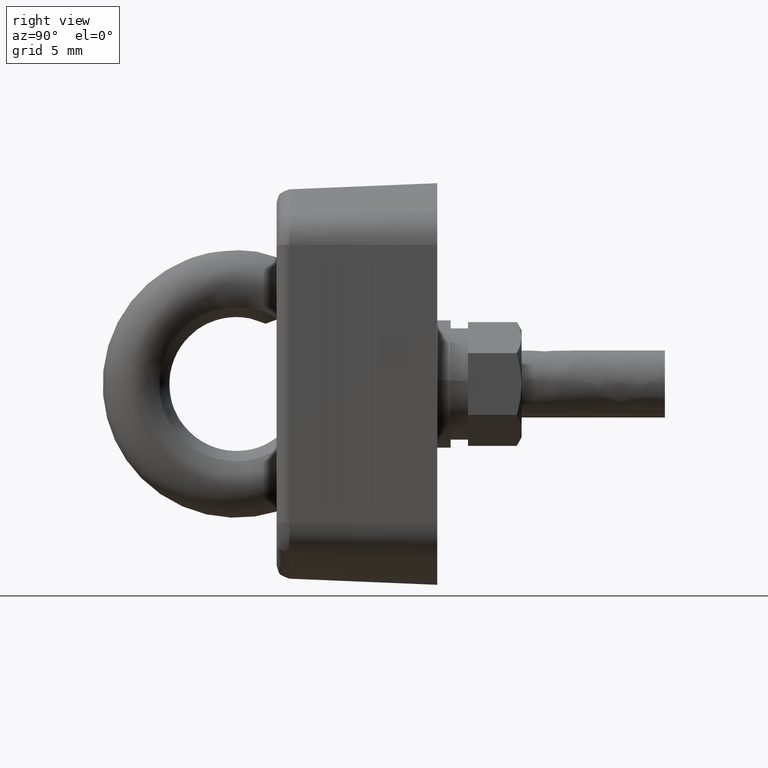
[diagram: clean part render]
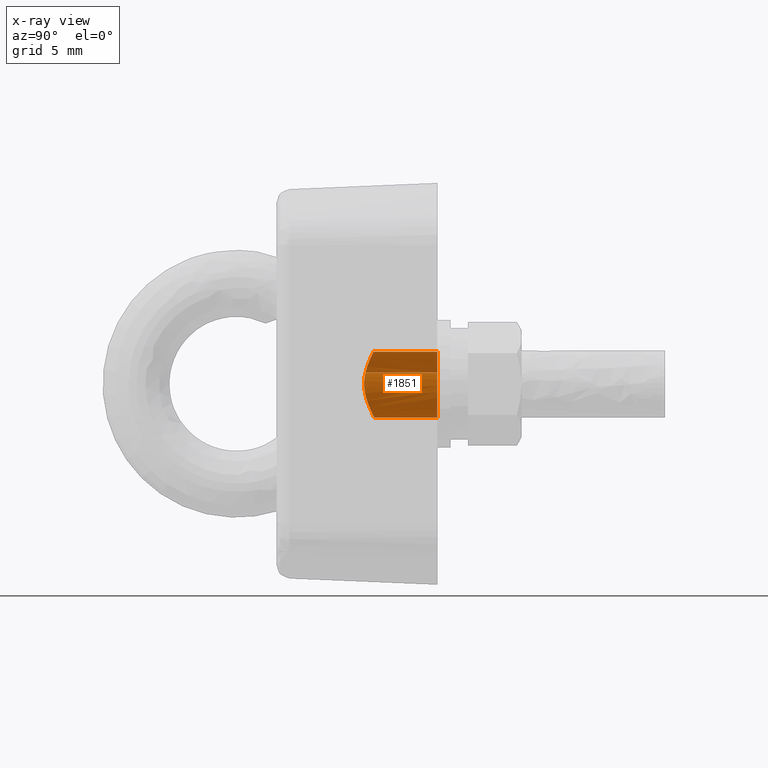
[diagram: x-ray — body ghosted, one internal face saturated and labeled with its STEP entity id]
A machine part, right view, then the same camera in x-ray: the body is ghosted and one INTERNAL B-rep face — a face not visible from any outside direction — is saturated and labeled: STEP entity #1851.
In plain terms, the highlighted face is a freeform B-spline surface patch.
Its self-contained STEP definition (entity closure, byte-faithful):
#1662=CARTESIAN_POINT('',(-2.400474345625166,-0.698371617403961,-15.136675569857164));
#1663=CARTESIAN_POINT('',(-2.380487249975805,-0.767072161862221,-15.136675569857156));
#1664=CARTESIAN_POINT('',(-2.356603727730445,-0.834517148084427,-15.136675569857159));
#1665=CARTESIAN_POINT('',(-1.522086579646018,-3.191120875814873,-15.136675569857164));
#1666=CARTESIAN_POINT('',(0.834517148084427,-2.356603727730445,-15.136675569857159));
#1667=CARTESIAN_POINT('',(3.191120875814873,-1.522086579646018,-15.136675569857164));
#1668=CARTESIAN_POINT('',(2.356603727730445,0.834517148084427,-15.136675569857159));
#1669=CARTESIAN_POINT('',(1.522086579646018,3.191120875814873,-15.136675569857164));
#1670=CARTESIAN_POINT('',(-0.834517148084427,2.356603727730445,-15.136675569857159));
#1671=CARTESIAN_POINT('',(-2.400474345625166,-0.698371617403961,-9.392884746610127));
#1672=CARTESIAN_POINT('',(-2.380487249975805,-0.767072161862221,-9.392884746610127));
#1673=CARTESIAN_POINT('',(-2.356603727730445,-0.834517148084427,-9.392884746610127));
#1674=CARTESIAN_POINT('',(-1.522086579646018,-3.191120875814873,-9.392884746610127));
#1675=CARTESIAN_POINT('',(0.834517148084427,-2.356603727730445,-9.392884746610127));
#1676=CARTESIAN_POINT('',(3.191120875814873,-1.522086579646018,-9.392884746610127));
#1677=CARTESIAN_POINT('',(2.356603727730445,0.834517148084427,-9.392884746610127));
#1678=CARTESIAN_POINT('',(1.522086579646018,3.191120875814873,-9.392884746610127));
#1679=CARTESIAN_POINT('',(-0.834517148084427,2.356603727730445,-9.392884746610127));
#1687=(BOUNDED_SURFACE()B_SPLINE_SURFACE(2,1,((#1662,#1671),(#1663,#1672),(#1664,#1673),(#1665,#1674),(#1666,#1675),(#1667,#1676),(#1668,#1677),(#1669,#1678),(#1670,#1679)),.UNSPECIFIED.,.F.,.F.,.U.)B_SPLINE_SURFACE_WITH_KNOTS((3,2,2,2,3),(2,2),(0.0,0.165685424949238,4.307821048680188,8.449956672411137,12.592092296142090),(0.0,5.743790823247034),.UNSPECIFIED.)GEOMETRIC_REPRESENTATION_ITEM()RATIONAL_B_SPLINE_SURFACE(((0.977505800795127,0.977505800795127),(0.988284271247462,0.988284271247462),(1.0,1.0),(0.707106781186548,0.707106781186548),(1.0,1.0),(0.707106781186548,0.707106781186548),(1.0,1.0),(0.707106781186548,0.707106781186548),(1.0,1.0)))REPRESENTATION_ITEM('')SURFACE());
#1688=CARTESIAN_POINT('',(-2.400485854074208,-0.698374963208913,-10.234896497972350));
#1689=VERTEX_POINT('',#1688);
#1690=CARTESIAN_POINT('',(-1.720062275421230,-1.814217674007285,-9.928201525168769));
#1691=VERTEX_POINT('',#1690);
#1692=CARTESIAN_POINT('',(-2.400485854074208,-0.698374963208913,-10.234896497972350));
#1693=CARTESIAN_POINT('',(-2.367907092692476,-0.810436813161984,-10.219110944419990));
#1694=CARTESIAN_POINT('',(-2.327827641463128,-0.918944160178772,-10.199824021060470));
#1695=CARTESIAN_POINT('',(-2.246997490033376,-1.098950831240567,-10.161490248014610));
#1696=CARTESIAN_POINT('',(-2.209727648091478,-1.172110236633715,-10.143962467868111));
#1697=CARTESIAN_POINT('',(-2.127845320286762,-1.314922363530359,-10.105989605065600));
#1698=CARTESIAN_POINT('',(-2.083843264726757,-1.383519662146822,-10.085828354127290));
#1699=CARTESIAN_POINT('',(-1.989967933757002,-1.515442026412261,-10.043587306438409));
#1700=CARTESIAN_POINT('',(-1.940094058799905,-1.578766054454357,-10.021505864531781));
#1701=CARTESIAN_POINT('',(-1.860902417329325,-1.669926386075394,-9.987266224498193));
#1702=CARTESIAN_POINT('',(-1.833773420225461,-1.699674306492915,-9.975666920876471));
#1703=CARTESIAN_POINT('',(-1.778035478738422,-1.757899561773036,-9.952154174289246));
#1704=CARTESIAN_POINT('',(-1.749344061989657,-1.786455140004649,-9.940206839056346));
#1705=CARTESIAN_POINT('',(-1.720062275421230,-1.814217674007285,-9.928201525168769));
#1706=B_SPLINE_CURVE_WITH_KNOTS('',3,(#1692,#1693,#1694,#1695,#1696,#1697,#1698,#1699,#1700,#1701,#1702,#1703,#1704,#1705),.UNSPECIFIED.,.F.,.U.,(4,2,2,2,2,2,4),(0.915544817561064,0.937499999999999,0.953125000000000,0.968750000000000,0.984375000000000,0.992187500000000,1.0),.UNSPECIFIED.);
#1707=EDGE_CURVE('',#1689,#1691,#1706,.T.);
#1708=ORIENTED_EDGE('',*,*,#1707,.T.);
#1709=CARTESIAN_POINT('',(1.725003035188111,1.809520524501401,-9.930228915298610));
#1710=VERTEX_POINT('',#1709);
#1711=CARTESIAN_POINT('',(-1.720062275421230,-1.814217674007285,-9.928201525168769));
#1712=CARTESIAN_POINT('',(-1.602933734841284,-1.925267404650524,-9.880180269620254));
#1713=CARTESIAN_POINT('',(-1.477228055666882,-2.023177779489839,-9.831475387068535));
#1714=CARTESIAN_POINT('',(-1.275367553175692,-2.151697090269526,-9.761238568995486));
#1715=CARTESIAN_POINT('',(-1.205842082886979,-2.191452052045651,-9.738306212810024));
#1716=CARTESIAN_POINT('',(-1.061945762678087,-2.264682852499739,-9.694240184849480));
#1717=CARTESIAN_POINT('',(-0.987225205579631,-2.298258003298106,-9.673033607089160));
#1718=CARTESIAN_POINT('',(-0.760223584198505,-2.387147655058333,-9.614944027114399));
#1719=CARTESIAN_POINT('',(-0.603879314563025,-2.431553671657723,-9.583128148208900));
#1720=CARTESIAN_POINT('',(-0.360728899121513,-2.475208179631746,-9.551159019033964));
#1721=CARTESIAN_POINT('',(-0.278230162388390,-2.485900989566377,-9.543135136681530));
#1722=CARTESIAN_POINT('',(-0.110029729457630,-2.499001643021718,-9.533266992136449));
#1723=CARTESIAN_POINT('',(-0.026368324893023,-2.501244244589079,-9.531552844047665));
#1724=CARTESIAN_POINT('',(0.223091920192333,-2.495576533335638,-9.535848525632728));
#1725=CARTESIAN_POINT('',(0.387487290379029,-2.475404908225023,-9.551372334396248));
#1726=CARTESIAN_POINT('',(0.631352395057349,-2.420400404524591,-9.590887128756259));
#1727=CARTESIAN_POINT('',(0.710842006218441,-2.398204553220350,-9.606520340312846));
#1728=CARTESIAN_POINT('',(0.865979837702947,-2.346648750363687,-9.641502822343160));
#1729=CARTESIAN_POINT('',(0.941736221134713,-2.317262625782821,-9.660869764697331));
#1730=CARTESIAN_POINT('',(1.052857213939390,-2.267848095401869,-9.692011640994121));
#1731=CARTESIAN_POINT('',(1.089477526370642,-2.250485152546244,-9.702741903948132));
#1732=CARTESIAN_POINT('',(1.161899684289973,-2.213963375023319,-9.724793337432560));
#1733=CARTESIAN_POINT('',(1.197766851991543,-2.194763994011057,-9.736137039727424));
#1734=CARTESIAN_POINT('',(1.303275421926824,-2.134949849328979,-9.770606491908811));
#1735=CARTESIAN_POINT('',(1.371066428339498,-2.092024514925552,-9.794230529568862));
#1736=CARTESIAN_POINT('',(1.567333645934880,-1.954232363409468,-9.865857750568154));
#1737=CARTESIAN_POINT('',(1.688841076969546,-1.850405585391051,-9.914602364625880));
#1738=CARTESIAN_POINT('',(1.913292479945646,-1.617249795142820,-10.009139533483941));
#1739=CARTESIAN_POINT('',(2.012913172902468,-1.491361045853720,-10.053532185215790));
#1740=CARTESIAN_POINT('',(2.144040192240303,-1.288249182705625,-10.113428898253030));
#1741=CARTESIAN_POINT('',(2.184671469034399,-1.218149175169829,-10.132285277555351));
#1742=CARTESIAN_POINT('',(2.240833060054418,-1.109205304311379,-10.158618206482650));
#1743=CARTESIAN_POINT('',(2.258754325052797,-1.072257171218868,-10.167070399822959));
#1744=CARTESIAN_POINT('',(2.292947723328868,-0.997044271963872,-10.183271736087780));
#1745=CARTESIAN_POINT('',(2.309193700926855,-0.958817220834778,-10.191008701788389));
#1746=CARTESIAN_POINT('',(2.385227101122919,-0.766803663255540,-10.227358300986911));
#1747=CARTESIAN_POINT('',(2.430462298607718,-0.608528432887219,-10.249418154916290));
#1748=CARTESIAN_POINT('',(2.474750607994403,-0.363968251194739,-10.271075630103230));
#1749=CARTESIAN_POINT('',(2.485557532018470,-0.281249251939581,-10.276383249503080));
#1750=CARTESIAN_POINT('',(2.495528850521837,-0.155274282757123,-10.281283276829010));
#1751=CARTESIAN_POINT('',(2.497792300197275,-0.113107501650573,-10.282396655077759));
#1752=CARTESIAN_POINT('',(2.500180882999286,-0.029244386458482,-10.283571618770360));
#1753=CARTESIAN_POINT('',(2.500316383636336,0.012572729016967,-10.283638307220491));
#1754=CARTESIAN_POINT('',(2.495788092475560,0.221095604164179,-10.281410663213681));
#1755=CARTESIAN_POINT('',(2.475662488420900,0.386128777975989,-10.271479213671780));
#1756=CARTESIAN_POINT('',(2.429698643123371,0.590181764767585,-10.249076491510190));
#1757=CARTESIAN_POINT('',(2.419433488982536,0.630935225041702,-10.244083013448240));
#1758=CARTESIAN_POINT('',(2.397053788911177,0.711245948231134,-10.233228883605660));
#1759=CARTESIAN_POINT('',(2.384916090417737,0.750921605703210,-10.227356902230520));
#1760=CARTESIAN_POINT('',(2.345730487185785,0.868550831251117,-10.208467127717320));
#1761=CARTESIAN_POINT('',(2.315917335671985,0.945109942197726,-10.194176951302570));
#1762=CARTESIAN_POINT('',(2.249103568712696,1.094641057932156,-10.162479823817289));
#1763=CARTESIAN_POINT('',(2.212102742177604,1.167612751242335,-10.145071731281300));
#1764=CARTESIAN_POINT('',(2.151180319965684,1.274402899673286,-10.116803334736311));
#1765=CARTESIAN_POINT('',(2.129924416845145,1.309613960722434,-10.107001593991651));
#1766=CARTESIAN_POINT('',(2.086027257238991,1.378461834672329,-10.086915070984640));
#1767=CARTESIAN_POINT('',(2.063345571088840,1.412176866486789,-10.076611272021060));
#1768=CARTESIAN_POINT('',(1.946348219854843,1.577321709297744,-10.023927623768820));
#1769=CARTESIAN_POINT('',(1.841397370107651,1.698562633559413,-9.978031067804405));
#1770=CARTESIAN_POINT('',(1.725003035188136,1.809520524501377,-9.930228915298621));
#1771=B_SPLINE_CURVE_WITH_KNOTS('',3,(#1711,#1712,#1713,#1714,#1715,#1716,#1717,#1718,#1719,#1720,#1721,#1722,#1723,#1724,#1725,#1726,#1727,#1728,#1729,#1730,#1731,#1732,#1733,#1734,#1735,#1736,#1737,#1738,#1739,#1740,#1741,#1742,#1743,#1744,#1745,#1746,#1747,#1748,#1749,#1750,#1751,#1752,#1753,#1754,#1755,#1756,#1757,#1758,#1759,#1760,#1761,#1762,#1763,#1764,#1765,#1766,#1767,#1768,#1769,#1770),.UNSPECIFIED.,.F.,.U.,(4,2,2,2,2,2,2,2,2,2,2,2,2,2,2,2,2,2,2,2,2,2,2,2,2,2,2,2,2,4),(0.0,0.031250000000000,0.046875000000000,0.062500000000000,0.093750000000000,0.109375000000000,0.125000000000000,0.156249999999999,0.171874999999999,0.187499999999999,0.195312499999999,0.203124999999999,0.218749999999999,0.249999999999999,0.281249999999999,0.296874999999999,0.304687499999999,0.312499999999998,0.343749999999998,0.359374999999998,0.367187499999998,0.374999999999998,0.406249999999998,0.414062499999998,0.421874999999998,0.437499999999998,0.453124999999998,0.460937499999998,0.468749999999998,0.499999999999998),.UNSPECIFIED.);
#1772=EDGE_CURVE('',#1691,#1710,#1771,.T.);
#1773=ORIENTED_EDGE('',*,*,#1772,.T.);
#1774=CARTESIAN_POINT('',(-0.834523432394564,2.356621466861053,-9.634661503114188));
#1775=VERTEX_POINT('',#1774);
#1776=CARTESIAN_POINT('',(1.725003035188111,1.809520524501401,-9.930228915298610));
#1777=CARTESIAN_POINT('',(1.666806036546293,1.864998993439782,-9.906327839045636));
#1778=CARTESIAN_POINT('',(1.605515362286938,1.918006296263090,-9.881883131910394));
#1779=CARTESIAN_POINT('',(1.479298717414397,2.016953090263796,-9.833559315816435));
#1780=CARTESIAN_POINT('',(1.414136574433733,2.063149514776907,-9.809577094566860));
#1781=CARTESIAN_POINT('',(1.212325470027288,2.192203552256351,-9.739198666482887));
#1782=CARTESIAN_POINT('',(1.069453231506353,2.265660812338474,-9.694265370767392));
#1783=CARTESIAN_POINT('',(0.763888085489063,2.386087249781490,-9.615697239706917));
#1784=CARTESIAN_POINT('',(0.606323465938596,2.431000591349479,-9.583521696849209));
#1785=CARTESIAN_POINT('',(0.402581891559728,2.467710745686766,-9.556643623607783));
#1786=CARTESIAN_POINT('',(0.361491510135370,2.474070105894224,-9.551936047102394));
#1787=CARTESIAN_POINT('',(0.278595403814673,2.484769627195358,-9.543969039387317));
#1788=CARTESIAN_POINT('',(0.236661576851751,2.489119004845254,-9.540702781987015));
#1789=CARTESIAN_POINT('',(0.110654484915906,2.498959235614313,-9.533290205513351));
#1790=CARTESIAN_POINT('',(0.027041928143828,2.501227317740024,-9.531556272451145));
#1791=CARTESIAN_POINT('',(-0.139421583658237,2.497483554260993,-9.534392966036529));
#1792=CARTESIAN_POINT('',(-0.222272543187392,2.491471124679713,-9.538962697625268));
#1793=CARTESIAN_POINT('',(-0.345990579604756,2.476275444574670,-9.550295784356273));
#1794=CARTESIAN_POINT('',(-0.387136813987537,2.470178753425247,-9.554818251594863));
#1795=CARTESIAN_POINT('',(-0.469244538847140,2.455903994935907,-9.565293705849866));
#1796=CARTESIAN_POINT('',(-0.510335911719431,2.447694227287733,-9.571269250186427));
#1797=CARTESIAN_POINT('',(-0.648087108536355,2.416570827583032,-9.593623570125114));
#1798=CARTESIAN_POINT('',(-0.742527791060597,2.389212744011738,-9.612845421526048));
#1799=CARTESIAN_POINT('',(-0.834523432394564,2.356621466861053,-9.634661503114188));
#1800=B_SPLINE_CURVE_WITH_KNOTS('',3,(#1776,#1777,#1778,#1779,#1780,#1781,#1782,#1783,#1784,#1785,#1786,#1787,#1788,#1789,#1790,#1791,#1792,#1793,#1794,#1795,#1796,#1797,#1798,#1799),.UNSPECIFIED.,.F.,.U.,(4,2,2,2,2,2,2,2,2,2,2,4),(0.499999999999998,0.515624999999998,0.531249999999998,0.562499999999998,0.593749999999998,0.601562499999998,0.609374999999998,0.624999999999998,0.640624999999998,0.648437499999998,0.656249999999998,0.674942231558156),.UNSPECIFIED.);
#1801=EDGE_CURVE('',#1710,#1775,#1800,.T.);
#1802=ORIENTED_EDGE('',*,*,#1801,.T.);
#1803=CARTESIAN_POINT('',(-0.834512754170460,2.356605283687767,-15.0));
#1804=VERTEX_POINT('',#1803);
#1805=CARTESIAN_POINT('',(-0.834512754170460,2.356605283687767,-15.0));
#1806=CARTESIAN_POINT('',(-0.834523432394564,2.356621466861053,-9.634661503114188));
#1807=QUASI_UNIFORM_CURVE('',1,(#1805,#1806),.UNSPECIFIED.,.F.,.U.);
#1808=EDGE_CURVE('',#1804,#1775,#1807,.T.);
#1809=ORIENTED_EDGE('',*,*,#1808,.F.);
#1810=CARTESIAN_POINT('',(2.500000000000000,0.0,-15.0));
#1811=VERTEX_POINT('',#1810);
#1812=CARTESIAN_POINT('',(2.500000000000000,0.0,-15.0));
#1813=CARTESIAN_POINT('',(2.500000000000000,2.500000000000000,-14.999999999999995));
#1814=CARTESIAN_POINT('',(0.0,2.500000000000000,-15.0));
#1815=CARTESIAN_POINT('',(-0.429576167623786,2.500000000000000,-14.999999999999995));
#1816=CARTESIAN_POINT('',(-0.834512754170460,2.356605283687767,-15.000000000000005));
#1824=(BOUNDED_CURVE()B_SPLINE_CURVE(2,(#1812,#1813,#1814,#1815,#1816),.UNSPECIFIED.,.F.,.U.)B_SPLINE_CURVE_WITH_KNOTS((3,2,3),(0.500000000000000,0.750000000000000,0.806714609685159),.UNSPECIFIED.)CURVE()GEOMETRIC_REPRESENTATION_ITEM()RATIONAL_B_SPLINE_CURVE((1.0,0.707106781186548,1.0,0.933554701662261,0.897256756609632))REPRESENTATION_ITEM(''));
#1825=EDGE_CURVE('',#1811,#1804,#1824,.T.);
#1826=ORIENTED_EDGE('',*,*,#1825,.F.);
#1827=CARTESIAN_POINT('',(-2.400474345612615,-0.698371617447104,-15.0));
#1828=VERTEX_POINT('',#1827);
#1829=CARTESIAN_POINT('',(-2.400474345612615,-0.698371617447104,-15.000000000000002));
#1830=CARTESIAN_POINT('',(-1.876325387326089,-2.500000000000000,-14.999999999999995));
#1831=CARTESIAN_POINT('',(0.0,-2.500000000000000,-15.0));
#1832=CARTESIAN_POINT('',(2.500000000000000,-2.500000000000000,-14.999999999999995));
#1833=CARTESIAN_POINT('',(2.500000000000000,0.0,-15.0));
#1841=(BOUNDED_CURVE()B_SPLINE_CURVE(2,(#1829,#1830,#1831,#1832,#1833),.UNSPECIFIED.,.F.,.U.)B_SPLINE_CURVE_WITH_KNOTS((3,2,3),(0.047576797457332,0.250000000000000,0.500000000000000),.UNSPECIFIED.)CURVE()GEOMETRIC_REPRESENTATION_ITEM()RATIONAL_B_SPLINE_CURVE((0.909735954993109,0.762846466579002,1.0,0.707106781186548,1.0))REPRESENTATION_ITEM(''));
#1842=EDGE_CURVE('',#1828,#1811,#1841,.T.);
#1843=ORIENTED_EDGE('',*,*,#1842,.F.);
#1844=CARTESIAN_POINT('',(-2.400474345612615,-0.698371617447104,-15.0));
#1845=CARTESIAN_POINT('',(-2.400485854074208,-0.698374963208913,-10.234896497972350));
#1846=QUASI_UNIFORM_CURVE('',1,(#1844,#1845),.UNSPECIFIED.,.F.,.U.);
#1847=EDGE_CURVE('',#1828,#1689,#1846,.T.);
#1848=ORIENTED_EDGE('',*,*,#1847,.T.);
#1849=EDGE_LOOP('',(#1708,#1773,#1802,#1809,#1826,#1843,#1848));
#1850=FACE_OUTER_BOUND('',#1849,.T.);
#1851=ADVANCED_FACE('',(#1850),#1687,.F.);